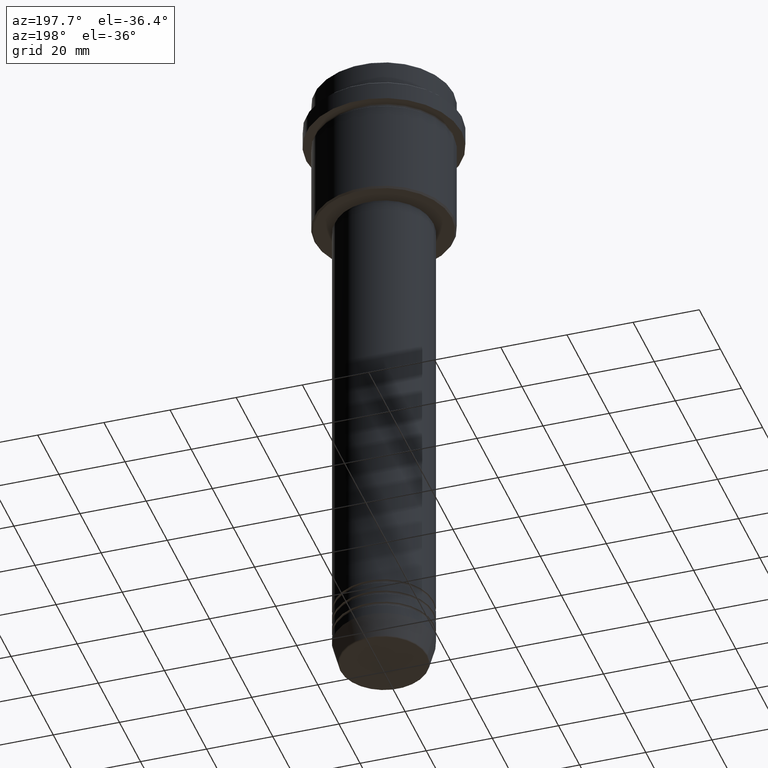
[diagram: clean part render]
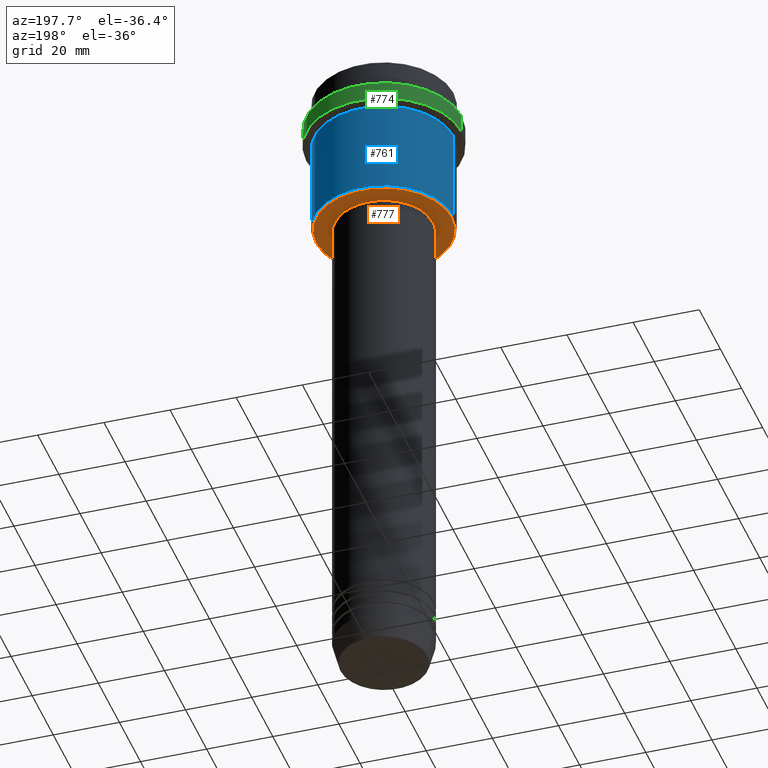
[diagram: same view with three faces highlighted in distinct colors, each labeled with its STEP entity id]
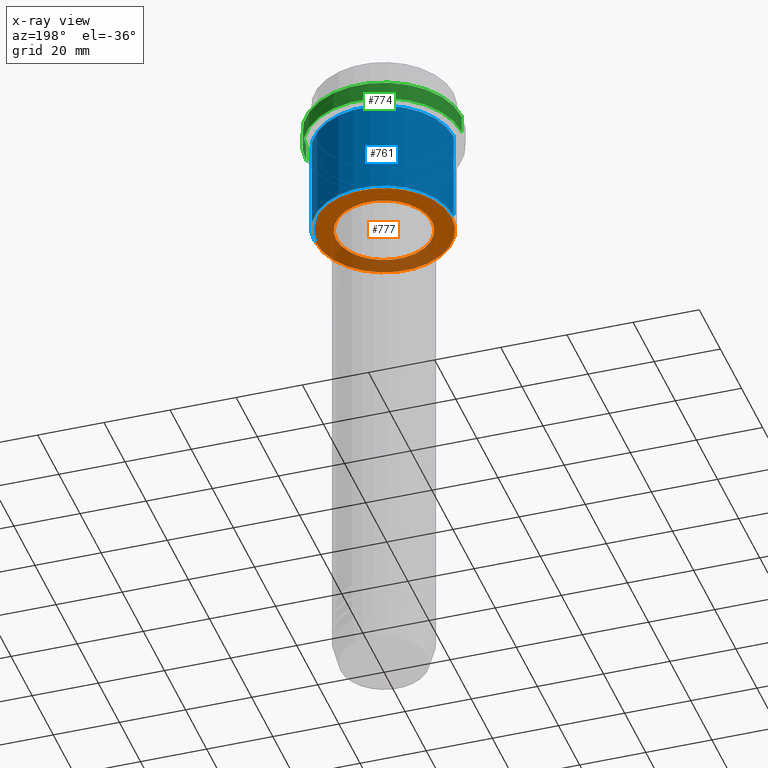
[diagram: x-ray of the same camera — body ghosted, the three highlighted faces saturated]
A machine part, auxiliary view with three faces highlighted in distinct colors.
The next image is the same camera in x-ray (body ghosted, the three faces saturated) — at least one of them is partly hidden behind the body in this view.
Their STEP definitions:

[orange] entity #777 — the highlighted planar face has unit normal (0, 0, -1).
#16 = AXIS2_PLACEMENT_3D ( 'NONE', #269, #469, #1013 ) ;
#37 = FACE_OUTER_BOUND ( 'NONE', #623, .T. ) ;
#93 = CARTESIAN_POINT ( 'NONE',  ( -20.49999999999998934, 2.541142108230757480E-15, -45.00000000000001421 ) ) ;
#106 = AXIS2_PLACEMENT_3D ( 'NONE', #573, #1370, #797 ) ;
#178 = PLANE ( 'NONE',  #106 ) ;
#200 = ORIENTED_EDGE ( 'NONE', *, *, #806, .T. ) ;
#269 = CARTESIAN_POINT ( 'NONE',  ( 0.000000000000000000, 0.000000000000000000, -45.00000000000001421 ) ) ;
#278 = VERTEX_POINT ( 'NONE', #690 ) ;
#369 = VERTEX_POINT ( 'NONE', #707 ) ;
#379 = CIRCLE ( 'NONE', #1187, 14.49999999999999467 ) ;
#469 = DIRECTION ( 'NONE',  ( 0.000000000000000000, 0.000000000000000000, -1.000000000000000000 ) ) ;
#479 = EDGE_CURVE ( 'NONE', #732, #278, #1160, .T. ) ;
#499 = DIRECTION ( 'NONE',  ( 0.000000000000000000, 0.000000000000000000, -1.000000000000000000 ) ) ;
#523 = EDGE_LOOP ( 'NONE', ( #887, #680 ) ) ;
#535 = CARTESIAN_POINT ( 'NONE',  ( 0.000000000000000000, 0.000000000000000000, -45.00000000000001421 ) ) ;
#544 = CARTESIAN_POINT ( 'NONE',  ( -14.49999999999999467, 1.775737858763661620E-15, -45.00000000000001421 ) ) ;
#573 = CARTESIAN_POINT ( 'NONE',  ( 0.000000000000000000, 21.00000000000000000, -45.00000000000001421 ) ) ;
#623 = EDGE_LOOP ( 'NONE', ( #200, #894 ) ) ;
#680 = ORIENTED_EDGE ( 'NONE', *, *, #479, .T. ) ;
#690 = CARTESIAN_POINT ( 'NONE',  ( 14.49999999999999467, 0.000000000000000000, -45.00000000000001421 ) ) ;
#707 = CARTESIAN_POINT ( 'NONE',  ( 20.49999999999998934, 0.000000000000000000, -45.00000000000001421 ) ) ;
#728 = DIRECTION ( 'NONE',  ( -0.000000000000000000, -0.000000000000000000, 1.000000000000000000 ) ) ;
#732 = VERTEX_POINT ( 'NONE', #544 ) ;
#757 = EDGE_CURVE ( 'NONE', #914, #369, #1297, .T. ) ;
#777 = ADVANCED_FACE ( 'NONE', ( #37, #1355 ), #178, .T. ) ;
#797 = DIRECTION ( 'NONE',  ( -1.000000000000000000, 0.000000000000000000, -0.000000000000000000 ) ) ;
#806 = EDGE_CURVE ( 'NONE', #369, #914, #1046, .T. ) ;
#868 = DIRECTION ( 'NONE',  ( -0.000000000000000000, -0.000000000000000000, 1.000000000000000000 ) ) ;
#887 = ORIENTED_EDGE ( 'NONE', *, *, #1062, .T. ) ;
#894 = ORIENTED_EDGE ( 'NONE', *, *, #757, .T. ) ;
#914 = VERTEX_POINT ( 'NONE', #93 ) ;
#918 = CARTESIAN_POINT ( 'NONE',  ( 0.000000000000000000, 0.000000000000000000, -45.00000000000001421 ) ) ;
#928 = DIRECTION ( 'NONE',  ( -1.000000000000000000, 0.000000000000000000, 0.000000000000000000 ) ) ;
#958 = DIRECTION ( 'NONE',  ( 1.000000000000000000, 0.000000000000000000, 0.000000000000000000 ) ) ;
#1013 = DIRECTION ( 'NONE',  ( -1.000000000000000000, 0.000000000000000000, 0.000000000000000000 ) ) ;
#1046 = CIRCLE ( 'NONE', #16, 20.49999999999998934 ) ;
#1062 = EDGE_CURVE ( 'NONE', #278, #732, #379, .T. ) ;
#1160 = CIRCLE ( 'NONE', #1205, 14.49999999999999467 ) ;
#1186 = AXIS2_PLACEMENT_3D ( 'NONE', #918, #499, #928 ) ;
#1187 = AXIS2_PLACEMENT_3D ( 'NONE', #535, #868, #1217 ) ;
#1205 = AXIS2_PLACEMENT_3D ( 'NONE', #1400, #728, #958 ) ;
#1217 = DIRECTION ( 'NONE',  ( 1.000000000000000000, 0.000000000000000000, 0.000000000000000000 ) ) ;
#1297 = CIRCLE ( 'NONE', #1186, 20.49999999999998934 ) ;
#1355 = FACE_BOUND ( 'NONE', #523, .T. ) ;
#1370 = DIRECTION ( 'NONE',  ( 0.000000000000000000, 0.000000000000000000, -1.000000000000000000 ) ) ;
#1400 = CARTESIAN_POINT ( 'NONE',  ( 0.000000000000000000, 0.000000000000000000, -45.00000000000001421 ) ) ;

[blue] entity #761 — the highlighted cylindrical surface (partial cylindrical patch) has radius 21 mm, axis along (-0, -0, 1).
#134 = AXIS2_PLACEMENT_3D ( 'NONE', #1369, #273, #1263 ) ;
#155 = CIRCLE ( 'NONE', #134, 21.00000000000000000 ) ;
#184 = CARTESIAN_POINT ( 'NONE',  ( -21.00000000000000000, 2.571758278209441661E-15, 0.000000000000000000 ) ) ;
#189 = VERTEX_POINT ( 'NONE', #1004 ) ;
#192 = DIRECTION ( 'NONE',  ( -1.000000000000000000, 0.000000000000000000, 0.000000000000000000 ) ) ;
#230 = EDGE_LOOP ( 'NONE', ( #484, #1102, #253, #770 ) ) ;
#253 = ORIENTED_EDGE ( 'NONE', *, *, #1255, .F. ) ;
#261 = FACE_OUTER_BOUND ( 'NONE', #230, .T. ) ;
#262 = LINE ( 'NONE', #1408, #666 ) ;
#273 = DIRECTION ( 'NONE',  ( -0.000000000000000000, -0.000000000000000000, 1.000000000000000000 ) ) ;
#297 = DIRECTION ( 'NONE',  ( -0.000000000000000000, -0.000000000000000000, 1.000000000000000000 ) ) ;
#378 = CARTESIAN_POINT ( 'NONE',  ( 21.00000000000000000, 0.000000000000000000, -44.49999999999998579 ) ) ;
#381 = DIRECTION ( 'NONE',  ( 1.000000000000000000, 0.000000000000000000, 0.000000000000000000 ) ) ;
#388 = CARTESIAN_POINT ( 'NONE',  ( 0.000000000000000000, 0.000000000000000000, 0.000000000000000000 ) ) ;
#411 = DIRECTION ( 'NONE',  ( -0.000000000000000000, -0.000000000000000000, 1.000000000000000000 ) ) ;
#422 = EDGE_CURVE ( 'NONE', #1195, #1283, #262, .T. ) ;
#434 = DIRECTION ( 'NONE',  ( -0.000000000000000000, -0.000000000000000000, 1.000000000000000000 ) ) ;
#484 = ORIENTED_EDGE ( 'NONE', *, *, #863, .T. ) ;
#666 = VECTOR ( 'NONE', #434, 1000.000000000000000 ) ;
#683 = CARTESIAN_POINT ( 'NONE',  ( 0.000000000000000000, 0.000000000000000000, -44.49999999999998579 ) ) ;
#733 = CARTESIAN_POINT ( 'NONE',  ( -21.00000000000000000, 2.571758278209441661E-15, -16.00000000000000355 ) ) ;
#761 = ADVANCED_FACE ( 'NONE', ( #261 ), #1126, .T. ) ;
#770 = ORIENTED_EDGE ( 'NONE', *, *, #422, .F. ) ;
#863 = EDGE_CURVE ( 'NONE', #1195, #189, #952, .T. ) ;
#881 = AXIS2_PLACEMENT_3D ( 'NONE', #388, #924, #381 ) ;
#884 = VECTOR ( 'NONE', #297, 1000.000000000000000 ) ;
#924 = DIRECTION ( 'NONE',  ( -0.000000000000000000, -0.000000000000000000, 1.000000000000000000 ) ) ;
#952 = CIRCLE ( 'NONE', #1365, 21.00000000000000000 ) ;
#988 = VERTEX_POINT ( 'NONE', #733 ) ;
#1004 = CARTESIAN_POINT ( 'NONE',  ( -21.00000000000000000, 2.571758278209441661E-15, -44.49999999999998579 ) ) ;
#1102 = ORIENTED_EDGE ( 'NONE', *, *, #1350, .T. ) ;
#1126 = CYLINDRICAL_SURFACE ( 'NONE', #881, 21.00000000000000000 ) ;
#1147 = CARTESIAN_POINT ( 'NONE',  ( 21.00000000000000000, 0.000000000000000000, -16.00000000000000355 ) ) ;
#1195 = VERTEX_POINT ( 'NONE', #378 ) ;
#1255 = EDGE_CURVE ( 'NONE', #1283, #988, #155, .T. ) ;
#1263 = DIRECTION ( 'NONE',  ( 1.000000000000000000, 0.000000000000000000, 0.000000000000000000 ) ) ;
#1283 = VERTEX_POINT ( 'NONE', #1147 ) ;
#1350 = EDGE_CURVE ( 'NONE', #189, #988, #1397, .T. ) ;
#1365 = AXIS2_PLACEMENT_3D ( 'NONE', #683, #411, #192 ) ;
#1369 = CARTESIAN_POINT ( 'NONE',  ( 0.000000000000000000, 0.000000000000000000, -16.00000000000000355 ) ) ;
#1397 = LINE ( 'NONE', #184, #884 ) ;
#1408 = CARTESIAN_POINT ( 'NONE',  ( 21.00000000000000000, 0.000000000000000000, 0.000000000000000000 ) ) ;

[green] entity #774 — the highlighted cylindrical surface (partial cylindrical patch) has radius 23.5 mm, axis along (-0, -0, 1).
#80 = DIRECTION ( 'NONE',  ( 0.000000000000000000, 0.000000000000000000, -1.000000000000000000 ) ) ;
#110 = CIRCLE ( 'NONE', #977, 23.50000000000000355 ) ;
#152 = AXIS2_PLACEMENT_3D ( 'NONE', #604, #802, #475 ) ;
#159 = EDGE_LOOP ( 'NONE', ( #395, #1141, #246, #1359 ) ) ;
#201 = LINE ( 'NONE', #1175, #536 ) ;
#216 = DIRECTION ( 'NONE',  ( -0.000000000000000000, -0.000000000000000000, 1.000000000000000000 ) ) ;
#238 = VERTEX_POINT ( 'NONE', #455 ) ;
#246 = ORIENTED_EDGE ( 'NONE', *, *, #1396, .T. ) ;
#318 = DIRECTION ( 'NONE',  ( 1.000000000000000000, 0.000000000000000000, 0.000000000000000000 ) ) ;
#395 = ORIENTED_EDGE ( 'NONE', *, *, #1401, .T. ) ;
#425 = CARTESIAN_POINT ( 'NONE',  ( 23.50000000000000355, 0.000000000000000000, -15.00000000000000000 ) ) ;
#455 = CARTESIAN_POINT ( 'NONE',  ( -23.50000000000000000, 2.877919977996280320E-15, -9.500000000000000000 ) ) ;
#475 = DIRECTION ( 'NONE',  ( 1.000000000000000000, 0.000000000000000000, 0.000000000000000000 ) ) ;
#536 = VECTOR ( 'NONE', #1191, 1000.000000000000000 ) ;
#604 = CARTESIAN_POINT ( 'NONE',  ( 0.000000000000000000, 0.000000000000000000, 0.000000000000000000 ) ) ;
#625 = CARTESIAN_POINT ( 'NONE',  ( 23.50000000000000000, 0.000000000000000000, -9.500000000000000000 ) ) ;
#731 = DIRECTION ( 'NONE',  ( -0.000000000000000000, -0.000000000000000000, 1.000000000000000000 ) ) ;
#746 = LINE ( 'NONE', #1280, #1015 ) ;
#774 = ADVANCED_FACE ( 'NONE', ( #817 ), #937, .T. ) ;
#802 = DIRECTION ( 'NONE',  ( -0.000000000000000000, -0.000000000000000000, 1.000000000000000000 ) ) ;
#817 = FACE_OUTER_BOUND ( 'NONE', #159, .T. ) ;
#821 = CARTESIAN_POINT ( 'NONE',  ( -23.50000000000000711, 2.877919977996281109E-15, -15.00000000000000000 ) ) ;
#849 = DIRECTION ( 'NONE',  ( 1.000000000000000000, 0.000000000000000000, 0.000000000000000000 ) ) ;
#864 = AXIS2_PLACEMENT_3D ( 'NONE', #1299, #80, #849 ) ;
#875 = VERTEX_POINT ( 'NONE', #625 ) ;
#937 = CYLINDRICAL_SURFACE ( 'NONE', #152, 23.50000000000000000 ) ;
#956 = EDGE_CURVE ( 'NONE', #972, #875, #746, .T. ) ;
#972 = VERTEX_POINT ( 'NONE', #425 ) ;
#977 = AXIS2_PLACEMENT_3D ( 'NONE', #1291, #731, #318 ) ;
#995 = EDGE_CURVE ( 'NONE', #1242, #238, #201, .T. ) ;
#998 = CIRCLE ( 'NONE', #864, 23.50000000000000000 ) ;
#1015 = VECTOR ( 'NONE', #216, 1000.000000000000000 ) ;
#1141 = ORIENTED_EDGE ( 'NONE', *, *, #995, .T. ) ;
#1175 = CARTESIAN_POINT ( 'NONE',  ( -23.50000000000000000, 2.877919977996280320E-15, 0.000000000000000000 ) ) ;
#1191 = DIRECTION ( 'NONE',  ( -0.000000000000000000, -0.000000000000000000, 1.000000000000000000 ) ) ;
#1242 = VERTEX_POINT ( 'NONE', #821 ) ;
#1280 = CARTESIAN_POINT ( 'NONE',  ( 23.50000000000000000, 0.000000000000000000, 0.000000000000000000 ) ) ;
#1291 = CARTESIAN_POINT ( 'NONE',  ( 0.000000000000000000, 0.000000000000000000, -15.00000000000000000 ) ) ;
#1299 = CARTESIAN_POINT ( 'NONE',  ( 0.000000000000000000, 0.000000000000000000, -9.500000000000000000 ) ) ;
#1359 = ORIENTED_EDGE ( 'NONE', *, *, #956, .F. ) ;
#1396 = EDGE_CURVE ( 'NONE', #238, #875, #998, .T. ) ;
#1401 = EDGE_CURVE ( 'NONE', #972, #1242, #110, .T. ) ;